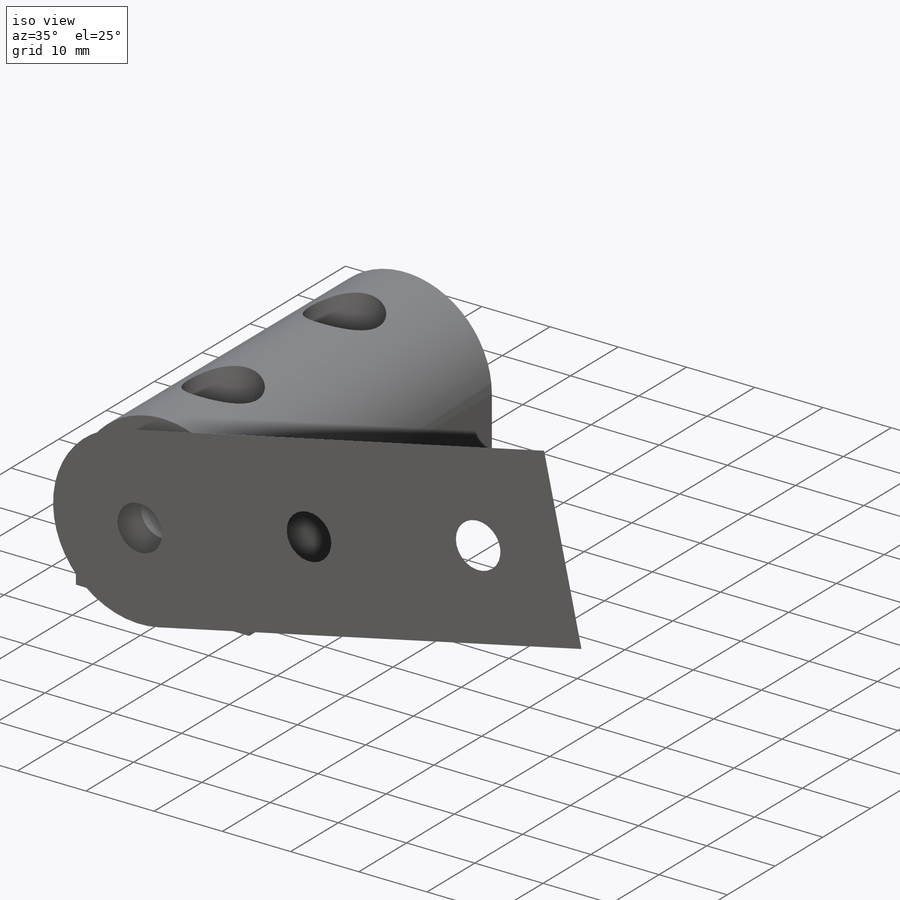
[diagram: iso view]
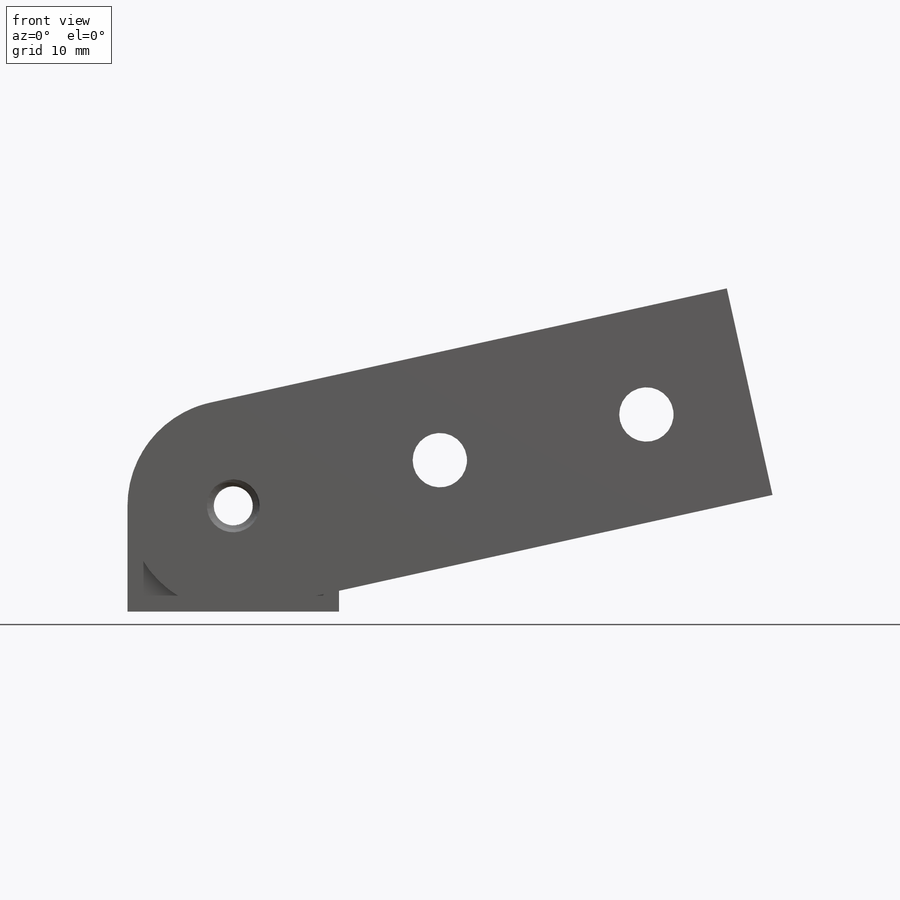
[diagram: front view]
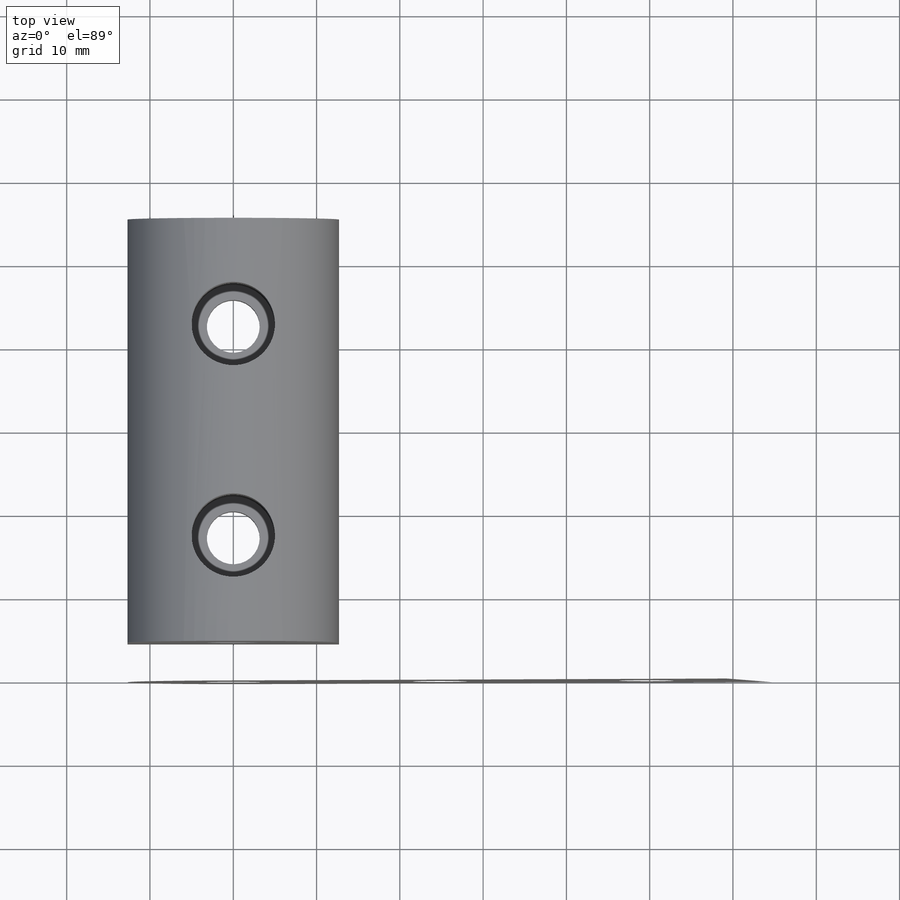
[diagram: top view]
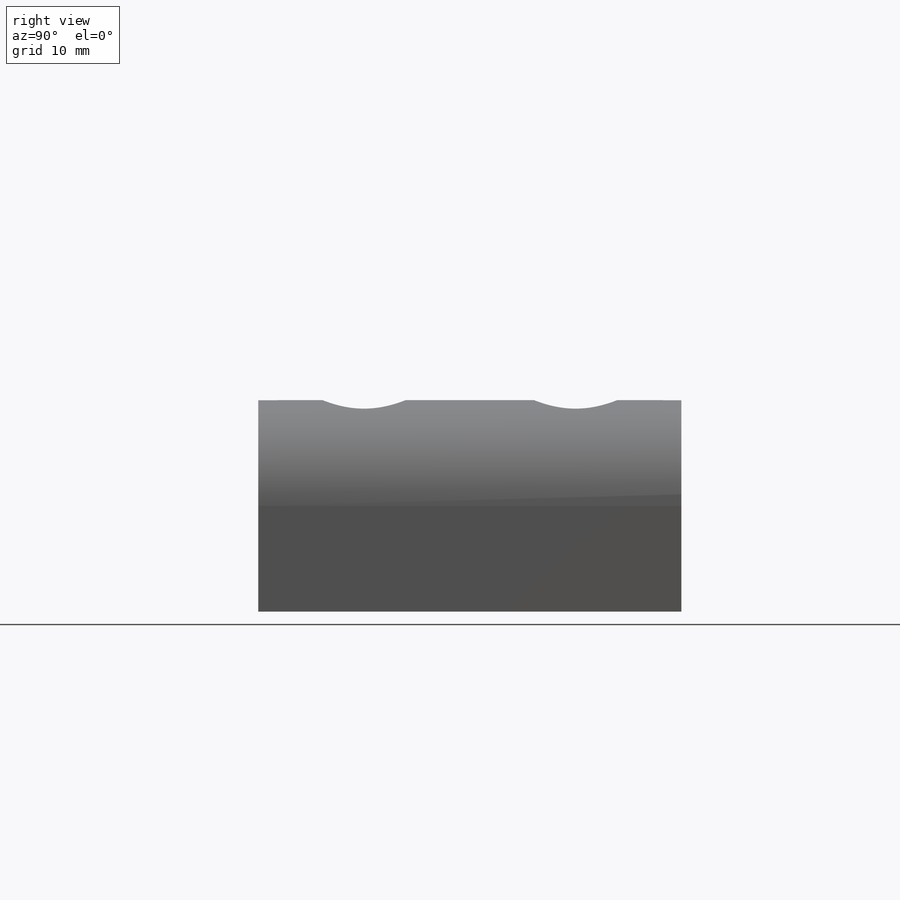
[diagram: right view]
SOLIDWORKS PART (.sldprt)
format: sldprt  version: not decoded by parser v0  size: 1,281,024 bytes
history: native  units: mm
features: sketch x22, cut_extrude x10, extrude x7, plane x4, chamfer x2, material x1, helix x1, sweep x1, revolve x1, mirror x1, pattern_linear x1 (+12 scaffold rows collapsed)
feature tree (63):
  scaffold x12  (default folders/planes/origin — collapsed)
  material  "Material <not specified>"
  sketch  "Sketch1"  dims[hole=6.35mm base b=12.7mm D3=25.4mm base a=25.4mm]
  extrude  "Extrude1"  Depth=50.8mm width=50.8mm
  sketch  "Sketch4"
  helix  "Helix/Spiral1"  Pitch=52.05mm pitch=1.27mm
  sketch  "Sketch5"  dims[c1.D1=~0.15875mm c1.D2=0.635mm c1.D3=~0.739329mm c2.D3=60.0deg]
  sweep  "Sweep1"
  sketch  "Sketch6"  dims[D1=0.0mm]
  cut_extrude  "Cut-Extrude3"  [1 undecoded]
  sketch  "Sketch7"  dims[D1=0.0mm]
  cut_extrude  "Cut-Extrude4"  [1 undecoded]
  sketch  "Sketch8"
  cut_extrude  "Cut-Extrude5"  [1 undecoded]
  sketch  "Sketch11"  dims[tab=6.4262mm D1=0.254mm D2=0.254mm D3=0.254mm D4=0.254mm]
  sketch  "Sketch12"
  extrude  "Extrude3"  Depth=1.27mm tab depth=1.27mm
  sketch  "Sketch13"
  extrude  "Extrude4"  Depth=1.27mm tab depth b=1.27mm
  sketch  "Sketch9"
  cut_extrude  "Cut-Extrude6"  [1 undecoded]
  sketch  "Sketch2"  dims[c1.D1=6.35mm c1.D3=6.35mm c1.D2=12.7mm c2.D3=12.7mm]
  cut_extrude  "Cut-Extrude1"  Depth=6.35mm
  sketch  "Sketch3"  dims[counter bore=10.0076mm]
  cut_extrude  "Cut-Extrude2"  [1 undecoded]
  sketch  "Sketch14"
  plane  "Plane1"
  sketch  "Sketch15"  dims[D1=0.127mm]
  extrude  "Extrude5"  Depth=5.5372mm
  chamfer  "Chamfer2"  Distance=0.381mm Angle=45deg
  sketch  "Sketch16"  dims[D1=4.7625mm]
  cut_extrude  "Cut-Extrude7"  Depth=3.175mm
  sketch  "Sketch17"
  cut_extrude  "Cut-Extrude8"  Depth=3.175mm
  plane  "Plane4"  Offset=1.27mm
  sketch  "Sketch18"  dims[c1.D1=~4.558561mm c1.D2=~7.088423mm c2.D1=22.225mm c2.D2=9.525mm c3.D1=11.1125mm c3.D2=~16.679644mm]
  extrude  "Extrude6"  Depth=1.27mm
  sketch  "Sketch19"
  extrude  "Extrude8"  Depth=1.27mm
  chamfer  "Chamfer5"  Distance=1.016mm Angle=45deg
  sketch  "Sketch10"  dims[c1.D1=~11.805449mm c1.D5=~8.80482mm c1.arm hole=6.5278mm c1.overall=76.2mm c1.arm a=25.4mm c1.D3=25.4mm c2.D3=192.47deg c2.D4=25.4mm c2.center to center=25.4mm]
  extrude  "Extrude2"  Depth=4.7625mm arm width=4.7625mm
  sketch  "Sketch20"  dims[D1=12.065mm D2=6.35mm D3=3.3528mm D4=0.635mm D5=11.1125mm]
  revolve  "Revolve1"  Angle=360deg
  plane  "Plane2"
  sketch  "Sketch21"  dims[D1=4.7625mm]
  cut_extrude  "Cut-Extrude9"  Depth=3.175mm
  plane  "Plane3"
  sketch  "Sketch22"
  cut_extrude  "Cut-Extrude10"  [1 undecoded]
  mirror  "Mirror1"
  pattern_linear  "LPattern1"  Count1=2 Count2=1 Spacing1=25.4mm Spacing2=0.254mm
decode coverage: 29 of 46 modeling features carry decoded parameters
note: ~ marks probable driven/reference dimensions
note: 6 parameter values undecoded
summary: no parameter record found for 6 features
note: suppression state not decoded; provenance and decode notes live in map.json
